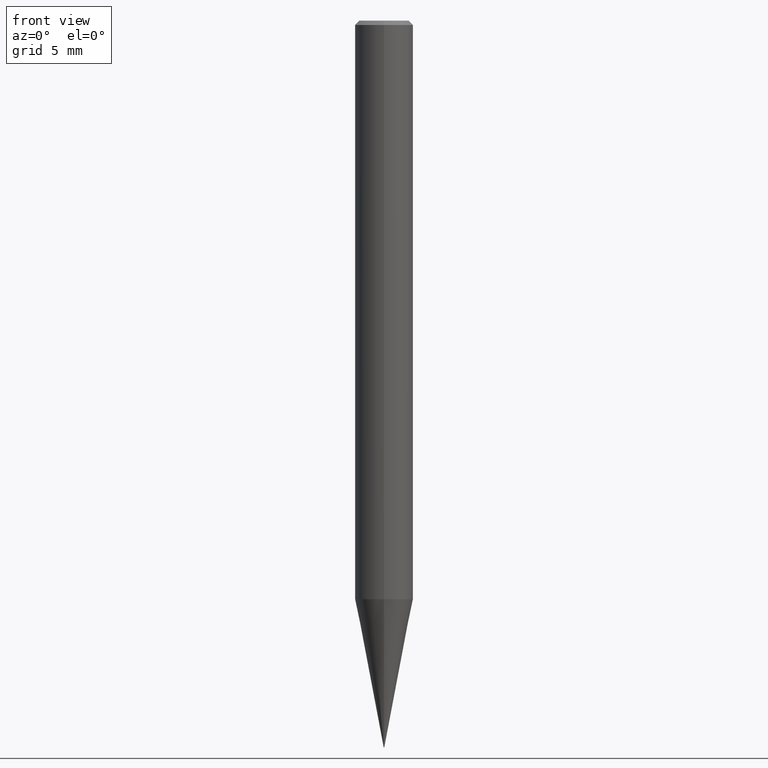
[diagram: clean part render]
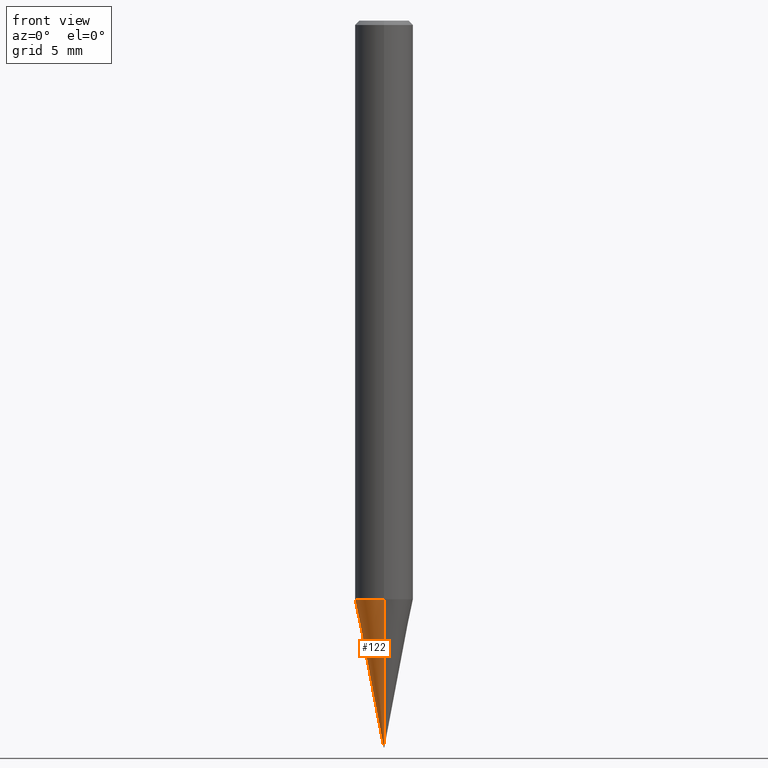
[diagram: same view with one face highlighted and labeled with its STEP entity id]
A machine part, front view. The second image highlights one B-rep face of the part: STEP entity #122.
In plain terms, the highlighted conical surface has half-angle 11 deg.
Its self-contained STEP definition (entity closure, byte-faithful):
#92=EDGE_CURVE('',#172,#120,#217,.T.);
#104=VERTEX_POINT('',#232);
#120=VERTEX_POINT('',#248);
#122=ADVANCED_FACE('',(#250),#251,.T.);
#124=EDGE_CURVE('',#120,#166,#253,.T.);
#166=VERTEX_POINT('',#304);
#172=VERTEX_POINT('',#311);
#182=EDGE_CURVE('',#172,#104,#321,.T.);
#190=EDGE_CURVE('',#166,#104,#330,.T.);
#217=LINE('',#354,#355);
#232=CARTESIAN_POINT('',(0.0,0.02995,-49.94));
#248=CARTESIAN_POINT('',(2.44915147732706E-016,-1.99995,-39.805));
#250=FACE_OUTER_BOUND('',#397,.T.);
#251=CONICAL_SURFACE('',#398,1.01495,0.191981993208078);
#253=CIRCLE('',#401,1.99995);
#304=CARTESIAN_POINT('',(0.0,1.99995,-39.805));
#311=CARTESIAN_POINT('',(3.667696029698E-018,-0.02995,-49.94));
#321=CIRCLE('',#478,0.02995);
#330=LINE('',#490,#491);
#354=CARTESIAN_POINT('',(1.24291421881202E-016,-1.01495,-44.8725));
#355=VECTOR('',#500,1.0);
#397=EDGE_LOOP('',(#533,#534,#535,#536));
#398=AXIS2_PLACEMENT_3D('',#537,#538,#539);
#401=AXIS2_PLACEMENT_3D('',#540,#541,#542);
#478=AXIS2_PLACEMENT_3D('',#632,#633,#634);
#490=CARTESIAN_POINT('',(-1.24291421881202E-016,1.01495,-44.8725));
#491=VECTOR('',#649,1.0);
#500=DIRECTION('',(2.33660829788375E-017,-0.190804848479715,0.981627989513661));
#533=ORIENTED_EDGE('',*,*,#190,.T.);
#534=ORIENTED_EDGE('',*,*,#182,.F.);
#535=ORIENTED_EDGE('',*,*,#92,.T.);
#536=ORIENTED_EDGE('',*,*,#124,.T.);
#537=CARTESIAN_POINT('',(0.0,0.0,-44.8725));
#538=DIRECTION('',(-0.0,-0.0,1.0));
#539=DIRECTION('',(0.0,1.0,0.0));
#540=CARTESIAN_POINT('',(0.0,0.0,-39.805));
#541=DIRECTION('',(0.0,0.0,-1.0));
#542=DIRECTION('',(0.0,1.0,0.0));
#632=CARTESIAN_POINT('',(0.0,0.0,-49.94));
#633=DIRECTION('',(0.0,0.0,-1.0));
#634=DIRECTION('',(0.0,1.0,0.0));
#649=DIRECTION('',(2.33660829788375E-017,-0.190804848479715,-0.981627989513661));